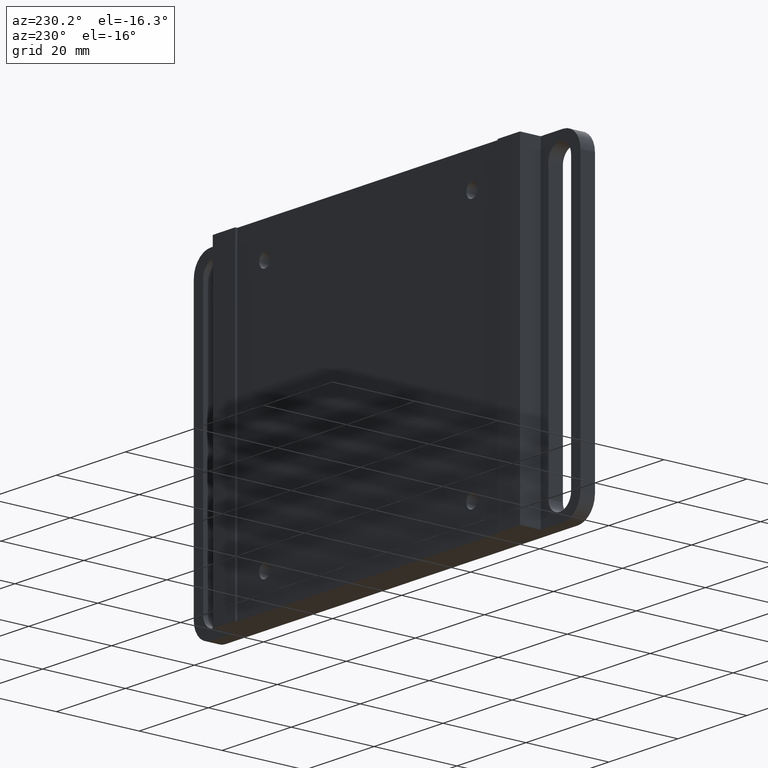
[diagram: clean part render]
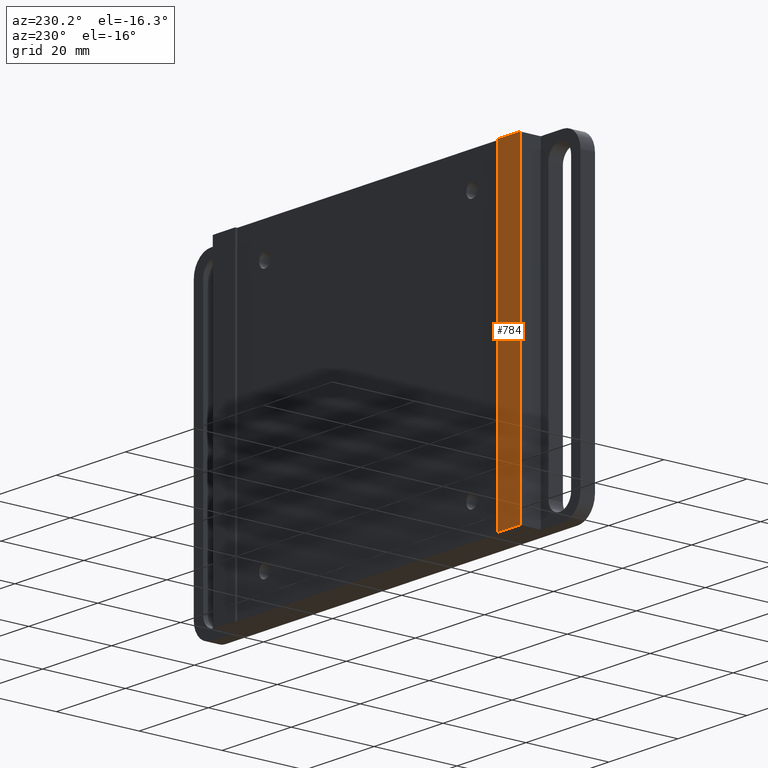
[diagram: same view with one face highlighted and labeled with its STEP entity id]
A machine part, auxiliary view. The second image highlights one B-rep face of the part: STEP entity #784.
In plain terms, the highlighted planar face has unit normal (0, 1, -0).
Its self-contained STEP definition (entity closure, byte-faithful):
#1 = CARTESIAN_POINT ( 'NONE',  ( -44.50000000000000000, 8.500000000000023093, 38.00000000000000000 ) ) ;
#18 = DIRECTION ( 'NONE',  ( -1.000000000000000000, 2.668805347656626678E-16, 0.000000000000000000 ) ) ;
#64 = CARTESIAN_POINT ( 'NONE',  ( -38.00000000000000711, 8.500000000000021316, -38.00000000000000000 ) ) ;
#103 = DIRECTION ( 'NONE',  ( 0.000000000000000000, 0.000000000000000000, 1.000000000000000000 ) ) ;
#136 = ORIENTED_EDGE ( 'NONE', *, *, #986, .T. ) ;
#174 = VECTOR ( 'NONE', #993, 1000.000000000000000 ) ;
#183 = VERTEX_POINT ( 'NONE', #1 ) ;
#190 = CARTESIAN_POINT ( 'NONE',  ( -44.50000000000000000, 8.500000000000023093, -38.00000000000000000 ) ) ;
#287 = VECTOR ( 'NONE', #712, 1000.000000000000000 ) ;
#292 = VERTEX_POINT ( 'NONE', #190 ) ;
#352 = DIRECTION ( 'NONE',  ( 2.668805347656626678E-16, 1.000000000000000000, -0.000000000000000000 ) ) ;
#376 = LINE ( 'NONE', #789, #397 ) ;
#390 = LINE ( 'NONE', #800, #788 ) ;
#397 = VECTOR ( 'NONE', #531, 1000.000000000000000 ) ;
#455 = EDGE_CURVE ( 'NONE', #939, #798, #376, .T. ) ;
#482 = LINE ( 'NONE', #577, #174 ) ;
#486 = EDGE_LOOP ( 'NONE', ( #764, #136, #677, #605 ) ) ;
#531 = DIRECTION ( 'NONE',  ( -0.000000000000000000, -0.000000000000000000, -1.000000000000000000 ) ) ;
#535 = EDGE_CURVE ( 'NONE', #798, #292, #482, .T. ) ;
#577 = CARTESIAN_POINT ( 'NONE',  ( -44.50000000000000000, 8.500000000000023093, -38.00000000000000000 ) ) ;
#605 = ORIENTED_EDGE ( 'NONE', *, *, #535, .T. ) ;
#627 = CARTESIAN_POINT ( 'NONE',  ( -44.50000000000000000, 8.500000000000023093, 38.00000000000000000 ) ) ;
#641 = PLANE ( 'NONE',  #1028 ) ;
#677 = ORIENTED_EDGE ( 'NONE', *, *, #455, .T. ) ;
#712 = DIRECTION ( 'NONE',  ( 1.000000000000000000, -2.668805347656626678E-16, 0.000000000000000000 ) ) ;
#730 = EDGE_CURVE ( 'NONE', #292, #183, #390, .T. ) ;
#751 = FACE_OUTER_BOUND ( 'NONE', #486, .T. ) ;
#764 = ORIENTED_EDGE ( 'NONE', *, *, #730, .T. ) ;
#784 = ADVANCED_FACE ( 'NONE', ( #751 ), #641, .T. ) ;
#788 = VECTOR ( 'NONE', #103, 1000.000000000000000 ) ;
#789 = CARTESIAN_POINT ( 'NONE',  ( -38.00000000000000000, 8.500000000000021316, -38.00000000000000000 ) ) ;
#798 = VERTEX_POINT ( 'NONE', #64 ) ;
#800 = CARTESIAN_POINT ( 'NONE',  ( -44.50000000000000000, 8.500000000000023093, -38.00000000000000000 ) ) ;
#804 = CARTESIAN_POINT ( 'NONE',  ( 2.268484545508135388E-15, 8.500000000000010658, 0.000000000000000000 ) ) ;
#939 = VERTEX_POINT ( 'NONE', #968 ) ;
#968 = CARTESIAN_POINT ( 'NONE',  ( -38.00000000000000000, 8.500000000000021316, 38.00000000000000000 ) ) ;
#986 = EDGE_CURVE ( 'NONE', #183, #939, #1050, .T. ) ;
#993 = DIRECTION ( 'NONE',  ( -1.000000000000000000, 2.668805347656626678E-16, -0.000000000000000000 ) ) ;
#1028 = AXIS2_PLACEMENT_3D ( 'NONE', #804, #352, #18 ) ;
#1050 = LINE ( 'NONE', #627, #287 ) ;